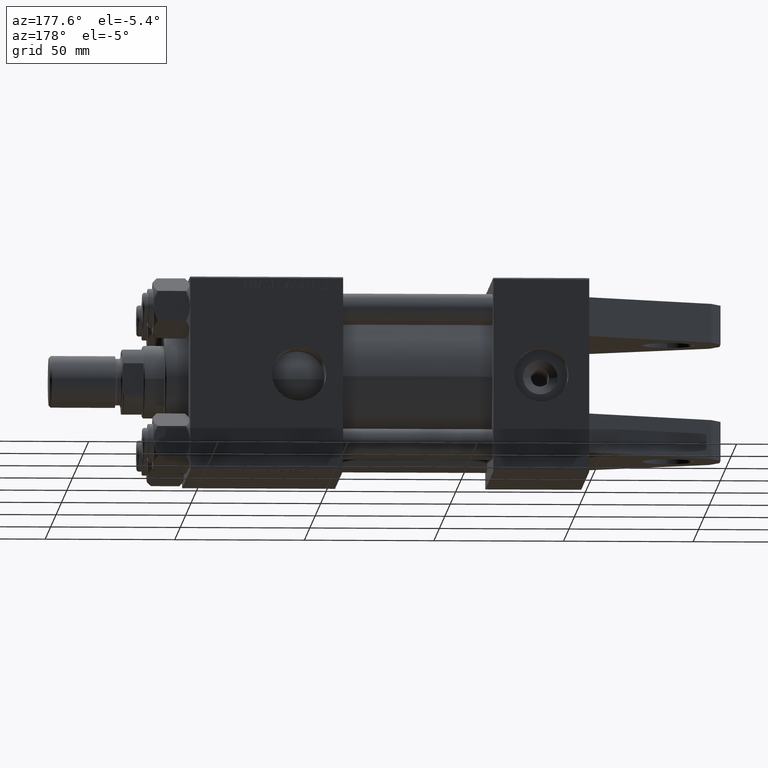
[diagram: clean part render]
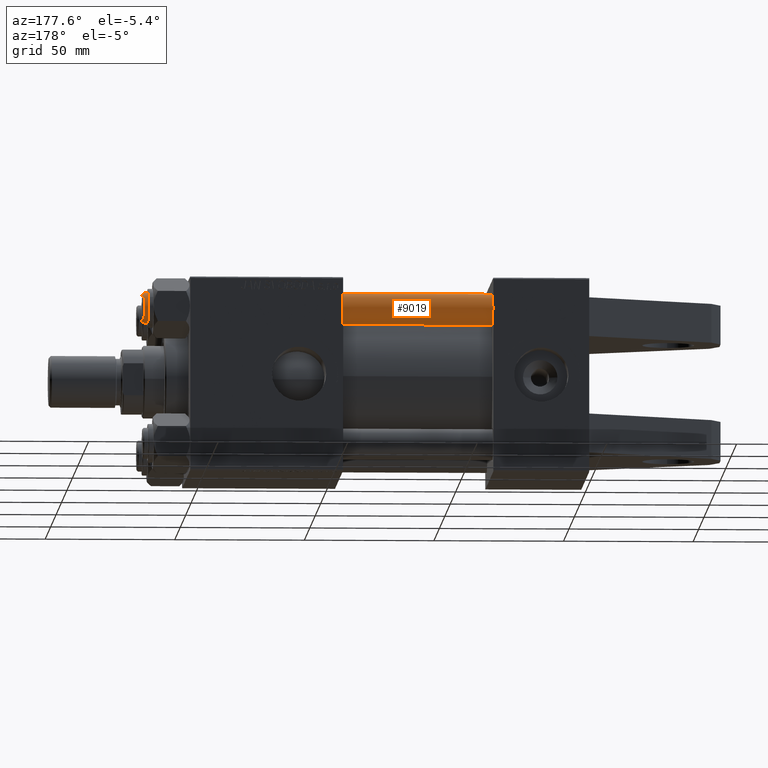
[diagram: same view with one face highlighted and labeled with its STEP entity id]
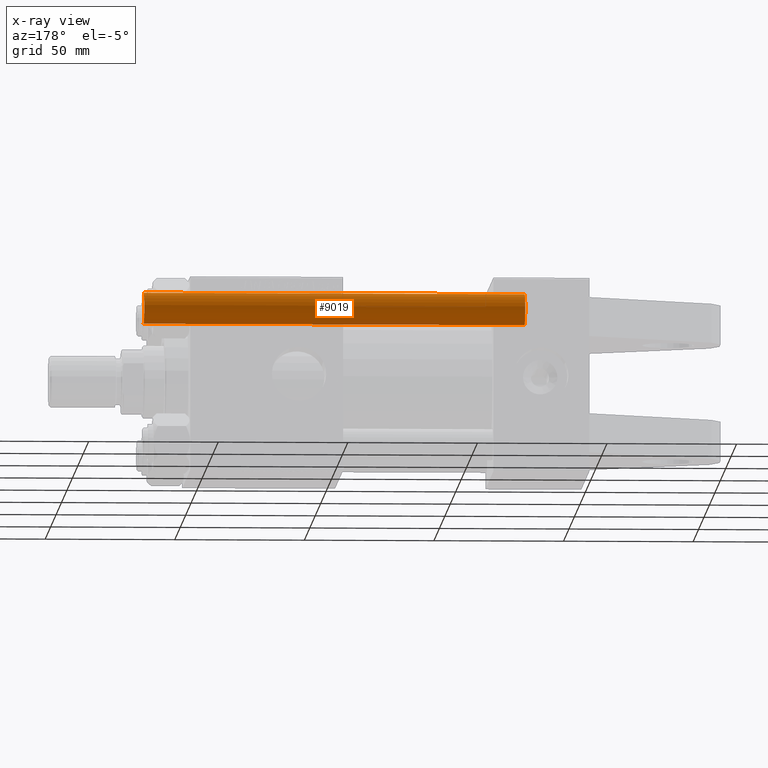
[diagram: x-ray of the same camera — body ghosted, the highlighted face saturated]
A machine part, auxiliary view. The second image highlights one B-rep face of the part: STEP entity #9019.
The next image is the same camera in x-ray: the body ghosted, the highlighted face saturated — about 0% of this face is hidden behind the body in this view.
In plain terms, the highlighted cylindrical surface (edge-blend (fillet) strip) has radius 6 mm, axis along (-1, 0, -0).
Its self-contained STEP definition (entity closure, byte-faithful):
#2268 = AXIS2_PLACEMENT_3D ( 'NONE', #19546, #51525, #15602 ) ;
#2315 = DIRECTION ( 'NONE',  ( 0.000000000000000000, 0.000000000000000000, -1.000000000000000000 ) ) ;
#2391 = CARTESIAN_POINT ( 'NONE',  ( -6.000000000000000888, 0.000000000000000000, 0.5000000000000281997 ) ) ;
#6689 = AXIS2_PLACEMENT_3D ( 'NONE', #17282, #2315, #45353 ) ;
#9019 = ADVANCED_FACE ( 'NONE', ( #18514 ), #30576, .T. ) ;
#11359 = VERTEX_POINT ( 'NONE', #41706 ) ;
#11465 = ORIENTED_EDGE ( 'NONE', *, *, #50739, .F. ) ;
#13970 = VECTOR ( 'NONE', #47266, 1000.000000000000000 ) ;
#15602 = DIRECTION ( 'NONE',  ( -1.000000000000000000, 0.000000000000000000, 0.000000000000000000 ) ) ;
#16211 = CARTESIAN_POINT ( 'NONE',  ( 6.000000000000000888, 7.347880794884120722E-16, 0.5000000000000281997 ) ) ;
#17282 = CARTESIAN_POINT ( 'NONE',  ( 0.000000000000000000, 0.000000000000000000, 147.5000000000000000 ) ) ;
#17486 = DIRECTION ( 'NONE',  ( -0.000000000000000000, -0.000000000000000000, -1.000000000000000000 ) ) ;
#17896 = EDGE_LOOP ( 'NONE', ( #42490, #49618, #31825, #11465 ) ) ;
#17991 = EDGE_CURVE ( 'NONE', #28850, #11359, #23420, .T. ) ;
#18514 = FACE_OUTER_BOUND ( 'NONE', #17896, .T. ) ;
#19019 = EDGE_CURVE ( 'NONE', #11359, #37604, #21934, .T. ) ;
#19080 = EDGE_CURVE ( 'NONE', #37604, #25366, #25231, .T. ) ;
#19546 = CARTESIAN_POINT ( 'NONE',  ( 0.000000000000000000, 0.000000000000000000, 148.0000000000000000 ) ) ;
#21043 = VECTOR ( 'NONE', #17486, 1000.000000000000000 ) ;
#21934 = LINE ( 'NONE', #22190, #21043 ) ;
#22190 = CARTESIAN_POINT ( 'NONE',  ( 6.000000000000000888, 7.347880794884120722E-16, 148.0000000000000000 ) ) ;
#23420 = CIRCLE ( 'NONE', #6689, 6.000000000000000888 ) ;
#25231 = CIRCLE ( 'NONE', #50353, 6.000000000000000888 ) ;
#25366 = VERTEX_POINT ( 'NONE', #2391 ) ;
#25595 = DIRECTION ( 'NONE',  ( -0.000000000000000000, -0.000000000000000000, 1.000000000000000000 ) ) ;
#28850 = VERTEX_POINT ( 'NONE', #48250 ) ;
#30338 = DIRECTION ( 'NONE',  ( 1.000000000000000000, 0.000000000000000000, 0.000000000000000000 ) ) ;
#30576 = CYLINDRICAL_SURFACE ( 'NONE', #2268, 6.000000000000000888 ) ;
#31825 = ORIENTED_EDGE ( 'NONE', *, *, #19080, .T. ) ;
#37604 = VERTEX_POINT ( 'NONE', #16211 ) ;
#41358 = CARTESIAN_POINT ( 'NONE',  ( 0.000000000000000000, 0.000000000000000000, 0.5000000000000281997 ) ) ;
#41706 = CARTESIAN_POINT ( 'NONE',  ( 6.000000000000000888, 7.347880794884120722E-16, 147.5000000000000000 ) ) ;
#42490 = ORIENTED_EDGE ( 'NONE', *, *, #17991, .T. ) ;
#45353 = DIRECTION ( 'NONE',  ( 1.000000000000000000, 0.000000000000000000, 0.000000000000000000 ) ) ;
#47018 = LINE ( 'NONE', #50944, #13970 ) ;
#47266 = DIRECTION ( 'NONE',  ( -0.000000000000000000, -0.000000000000000000, -1.000000000000000000 ) ) ;
#48250 = CARTESIAN_POINT ( 'NONE',  ( -6.000000000000000888, 0.000000000000000000, 147.5000000000000000 ) ) ;
#49618 = ORIENTED_EDGE ( 'NONE', *, *, #19019, .T. ) ;
#50353 = AXIS2_PLACEMENT_3D ( 'NONE', #41358, #25595, #30338 ) ;
#50739 = EDGE_CURVE ( 'NONE', #28850, #25366, #47018, .T. ) ;
#50944 = CARTESIAN_POINT ( 'NONE',  ( -6.000000000000000888, 0.000000000000000000, 148.0000000000000000 ) ) ;
#51525 = DIRECTION ( 'NONE',  ( -0.000000000000000000, -0.000000000000000000, -1.000000000000000000 ) ) ;